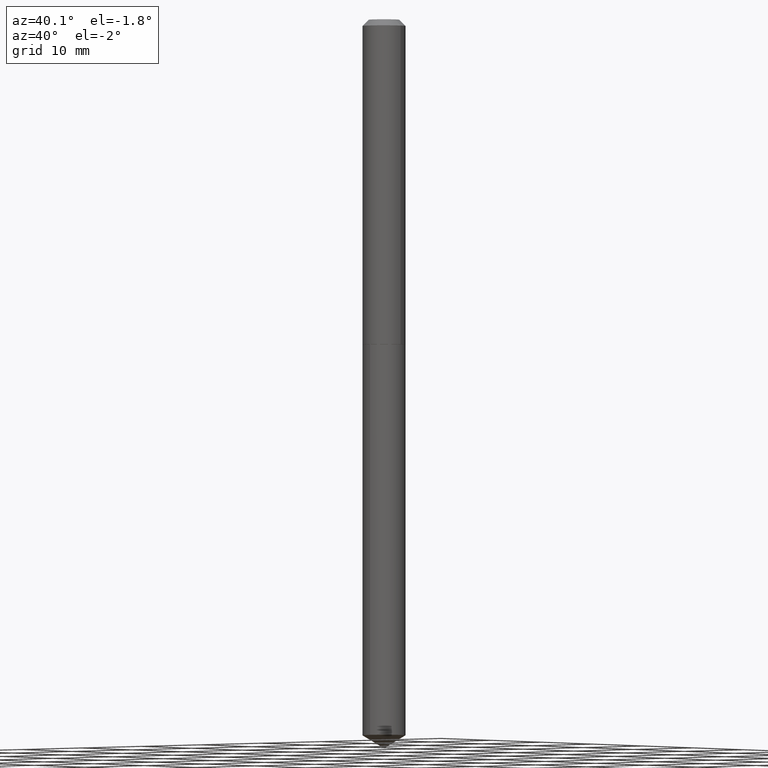
[diagram: clean part render]
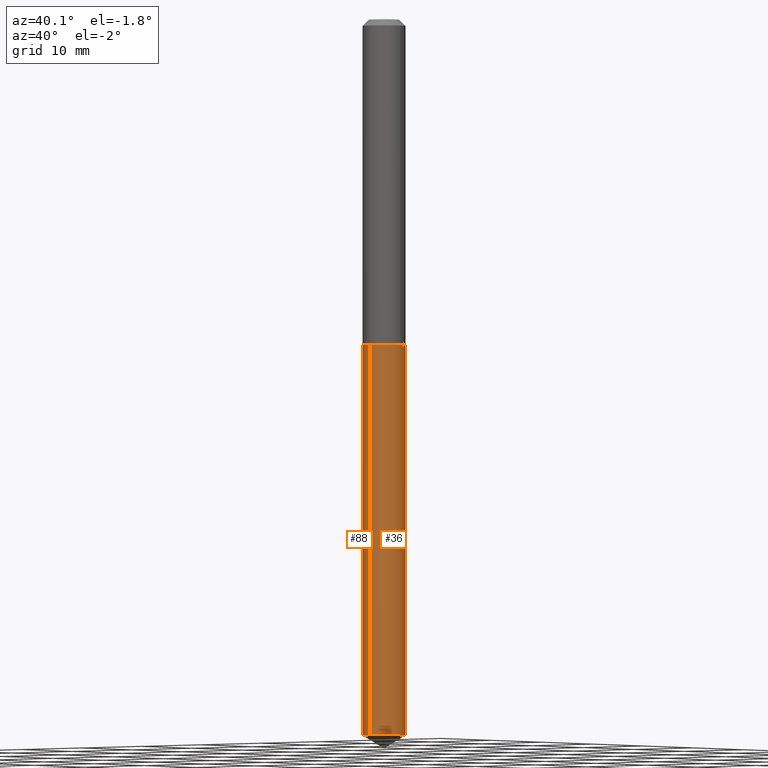
[diagram: same view with one multi-face feature highlighted, each face labeled with its STEP entity id]
A machine part, auxiliary view. The highlighted faces form ONE feature: a constant-radius fillet chain: 2 tangent blend faces with common blend radius 2.7495 mm. The faces share edges in the B-rep.
Their STEP definitions:
[1] entity #88 (Cylinder):
#2 = EDGE_CURVE ( 'NONE', #223, #251, #306, .T. ) ;
#12 = DIRECTION ( 'NONE',  ( -6.982962677686265922E-15, -1.000000000000000000, 2.523647107311097814E-15 ) ) ;
#44 = EDGE_LOOP ( 'NONE', ( #375, #109, #178, #215 ) ) ;
#54 = VERTEX_POINT ( 'NONE', #59 ) ;
#59 = CARTESIAN_POINT ( 'NONE',  ( 7.691625114603964021E-16, 0.1082499999999874674, -3.596356837990267064 ) ) ;
#64 = DIRECTION ( 'NONE',  ( -6.982962677686265922E-15, -1.000000000000000000, 5.047294214622195629E-15 ) ) ;
#72 = CARTESIAN_POINT ( 'NONE',  ( -7.559057098594504016E-16, -0.1082500000000125445, -3.596356837990265731 ) ) ;
#81 = AXIS2_PLACEMENT_3D ( 'NONE', #147, #191, #12 ) ;
#85 = CIRCLE ( 'NONE', #285, 0.1082499999999999990 ) ;
#88 = ADVANCED_FACE ( 'NONE', ( #119 ), #122, .T. ) ;
#103 = DIRECTION ( 'NONE',  ( -2.445518993859690405E-29, 3.491409467236679576E-15, 1.000000000000000000 ) ) ;
#109 = ORIENTED_EDGE ( 'NONE', *, *, #389, .T. ) ;
#119 = FACE_OUTER_BOUND ( 'NONE', #44, .T. ) ;
#122 = CYLINDRICAL_SURFACE ( 'NONE', #81, 0.1082499999999999990 ) ;
#130 = DIRECTION ( 'NONE',  ( -6.982962677686265922E-15, -1.000000000000000000, 2.523647107311097814E-15 ) ) ;
#147 = CARTESIAN_POINT ( 'NONE',  ( 3.995406935545275904E-29, -5.704382211401930676E-15, -1.633799999999999919 ) ) ;
#172 = CARTESIAN_POINT ( 'NONE',  ( 8.794876959379687620E-29, -1.255647173555123152E-14, -3.596356837990266619 ) ) ;
#176 = AXIS2_PLACEMENT_3D ( 'NONE', #172, #201, #64 ) ;
#178 = ORIENTED_EDGE ( 'NONE', *, *, #2, .T. ) ;
#181 = CARTESIAN_POINT ( 'NONE',  ( -7.559057098594983249E-16, -0.1082500000000057028, -1.633799999999999697 ) ) ;
#191 = DIRECTION ( 'NONE',  ( -2.445518993859690405E-29, 3.491409467236679576E-15, 1.000000000000000000 ) ) ;
#201 = DIRECTION ( 'NONE',  ( -2.445518993859690405E-29, 3.491409467236679576E-15, 1.000000000000000000 ) ) ;
#212 = EDGE_CURVE ( 'NONE', #227, #251, #85, .T. ) ;
#215 = ORIENTED_EDGE ( 'NONE', *, *, #212, .F. ) ;
#223 = VERTEX_POINT ( 'NONE', #72 ) ;
#227 = VERTEX_POINT ( 'NONE', #361 ) ;
#239 = VECTOR ( 'NONE', #269, 39.37007874015748143 ) ;
#251 = VERTEX_POINT ( 'NONE', #341 ) ;
#268 = LINE ( 'NONE', #342, #349 ) ;
#269 = DIRECTION ( 'NONE',  ( -2.445518993859690405E-29, 3.491409467236679576E-15, 1.000000000000000000 ) ) ;
#271 = DIRECTION ( 'NONE',  ( -2.445518993859690405E-29, 3.491409467236679576E-15, 1.000000000000000000 ) ) ;
#274 = CARTESIAN_POINT ( 'NONE',  ( 3.995406935545275904E-29, -5.704382211401930676E-15, -1.633799999999999919 ) ) ;
#285 = AXIS2_PLACEMENT_3D ( 'NONE', #274, #103, #130 ) ;
#301 = EDGE_CURVE ( 'NONE', #54, #227, #268, .T. ) ;
#306 = LINE ( 'NONE', #181, #239 ) ;
#341 = CARTESIAN_POINT ( 'NONE',  ( -7.559057098594983249E-16, -0.1082500000000057028, -1.633799999999999697 ) ) ;
#342 = CARTESIAN_POINT ( 'NONE',  ( 7.691625114603482816E-16, 0.1082499999999942952, -1.633800000000000141 ) ) ;
#349 = VECTOR ( 'NONE', #271, 39.37007874015748143 ) ;
#361 = CARTESIAN_POINT ( 'NONE',  ( 7.691625114603965007E-16, 0.1082499999999942952, -1.633800000000000141 ) ) ;
#375 = ORIENTED_EDGE ( 'NONE', *, *, #301, .F. ) ;
#385 = CIRCLE ( 'NONE', #176, 0.1082499999999999990 ) ;
#389 = EDGE_CURVE ( 'NONE', #54, #223, #385, .T. ) ;
[2] entity #36 (Cylinder):
#2 = EDGE_CURVE ( 'NONE', #223, #251, #306, .T. ) ;
#36 = ADVANCED_FACE ( 'NONE', ( #84 ), #384, .T. ) ;
#54 = VERTEX_POINT ( 'NONE', #59 ) ;
#57 = CARTESIAN_POINT ( 'NONE',  ( 3.995406935545275904E-29, -5.704382211401930676E-15, -1.633799999999999919 ) ) ;
#59 = CARTESIAN_POINT ( 'NONE',  ( 7.691625114603964021E-16, 0.1082499999999874674, -3.596356837990267064 ) ) ;
#72 = CARTESIAN_POINT ( 'NONE',  ( -7.559057098594504016E-16, -0.1082500000000125445, -3.596356837990265731 ) ) ;
#75 = CARTESIAN_POINT ( 'NONE',  ( 8.794876959379687620E-29, -1.255647173555123152E-14, -3.596356837990266619 ) ) ;
#84 = FACE_OUTER_BOUND ( 'NONE', #245, .T. ) ;
#102 = CIRCLE ( 'NONE', #132, 0.1082499999999999990 ) ;
#125 = CARTESIAN_POINT ( 'NONE',  ( 3.995406935545275904E-29, -5.704382211401930676E-15, -1.633799999999999919 ) ) ;
#128 = EDGE_CURVE ( 'NONE', #251, #227, #266, .T. ) ;
#131 = ORIENTED_EDGE ( 'NONE', *, *, #291, .T. ) ;
#132 = AXIS2_PLACEMENT_3D ( 'NONE', #75, #152, #312 ) ;
#152 = DIRECTION ( 'NONE',  ( -2.445518993859690405E-29, 3.491409467236679576E-15, 1.000000000000000000 ) ) ;
#181 = CARTESIAN_POINT ( 'NONE',  ( -7.559057098594983249E-16, -0.1082500000000057028, -1.633799999999999697 ) ) ;
#208 = ORIENTED_EDGE ( 'NONE', *, *, #301, .T. ) ;
#216 = AXIS2_PLACEMENT_3D ( 'NONE', #125, #309, #337 ) ;
#223 = VERTEX_POINT ( 'NONE', #72 ) ;
#227 = VERTEX_POINT ( 'NONE', #361 ) ;
#230 = DIRECTION ( 'NONE',  ( -6.982962677686265922E-15, -1.000000000000000000, 2.523647107311097814E-15 ) ) ;
#239 = VECTOR ( 'NONE', #269, 39.37007874015748143 ) ;
#245 = EDGE_LOOP ( 'NONE', ( #131, #208, #369, #374 ) ) ;
#251 = VERTEX_POINT ( 'NONE', #341 ) ;
#257 = DIRECTION ( 'NONE',  ( -2.445518993859690405E-29, 3.491409467236679576E-15, 1.000000000000000000 ) ) ;
#266 = CIRCLE ( 'NONE', #216, 0.1082499999999999990 ) ;
#268 = LINE ( 'NONE', #342, #349 ) ;
#269 = DIRECTION ( 'NONE',  ( -2.445518993859690405E-29, 3.491409467236679576E-15, 1.000000000000000000 ) ) ;
#271 = DIRECTION ( 'NONE',  ( -2.445518993859690405E-29, 3.491409467236679576E-15, 1.000000000000000000 ) ) ;
#291 = EDGE_CURVE ( 'NONE', #223, #54, #102, .T. ) ;
#301 = EDGE_CURVE ( 'NONE', #54, #227, #268, .T. ) ;
#306 = LINE ( 'NONE', #181, #239 ) ;
#309 = DIRECTION ( 'NONE',  ( -2.445518993859690405E-29, 3.491409467236679576E-15, 1.000000000000000000 ) ) ;
#312 = DIRECTION ( 'NONE',  ( -6.982962677686265922E-15, -1.000000000000000000, 5.047294214622195629E-15 ) ) ;
#325 = AXIS2_PLACEMENT_3D ( 'NONE', #57, #257, #230 ) ;
#337 = DIRECTION ( 'NONE',  ( -6.982962677686265922E-15, -1.000000000000000000, 2.523647107311097814E-15 ) ) ;
#341 = CARTESIAN_POINT ( 'NONE',  ( -7.559057098594983249E-16, -0.1082500000000057028, -1.633799999999999697 ) ) ;
#342 = CARTESIAN_POINT ( 'NONE',  ( 7.691625114603482816E-16, 0.1082499999999942952, -1.633800000000000141 ) ) ;
#349 = VECTOR ( 'NONE', #271, 39.37007874015748143 ) ;
#361 = CARTESIAN_POINT ( 'NONE',  ( 7.691625114603965007E-16, 0.1082499999999942952, -1.633800000000000141 ) ) ;
#369 = ORIENTED_EDGE ( 'NONE', *, *, #128, .F. ) ;
#374 = ORIENTED_EDGE ( 'NONE', *, *, #2, .F. ) ;
#384 = CYLINDRICAL_SURFACE ( 'NONE', #325, 0.1082499999999999990 ) ;